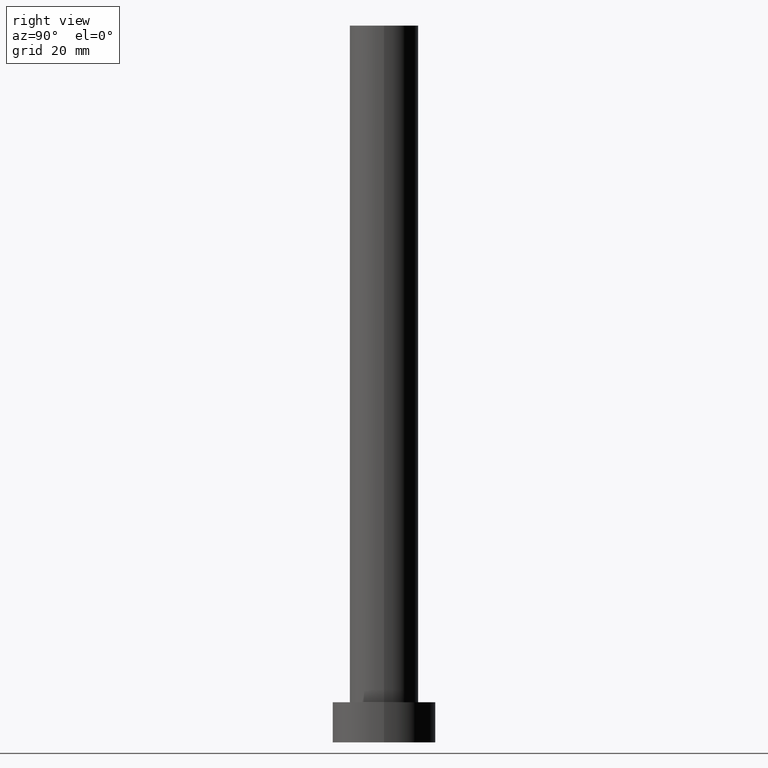
[diagram: clean part render]
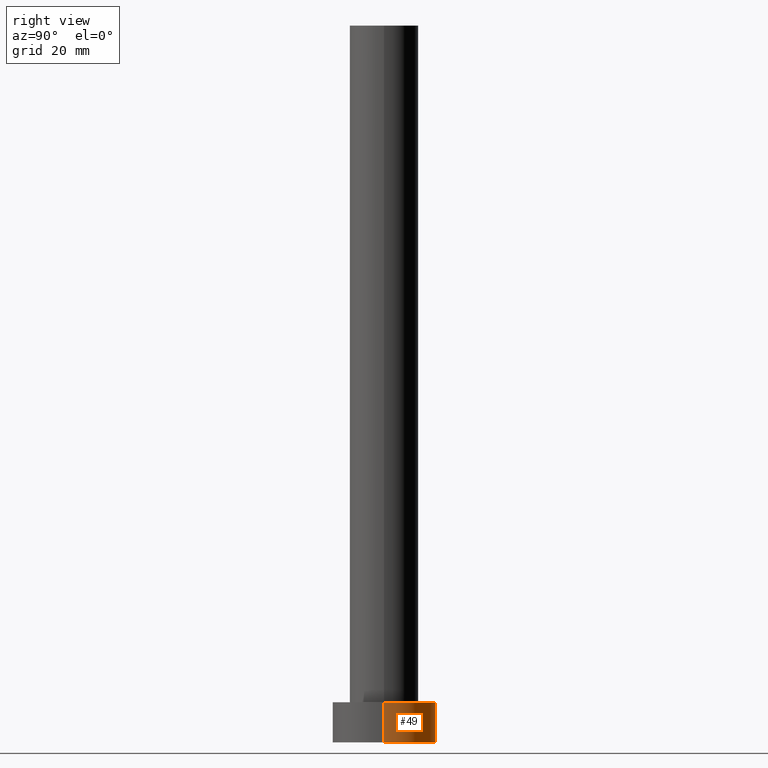
[diagram: same view with one face highlighted and labeled with its STEP entity id]
A machine part, right view. The second image highlights one B-rep face of the part: STEP entity #49.
In plain terms, the highlighted cylindrical surface (partial cylindrical patch) has radius 9 mm, axis along (-0, -0, -1).
Its self-contained STEP definition (entity closure, byte-faithful):
#4 = CARTESIAN_POINT ( 'NONE',  ( 9.000000000000000000, 1.102182119232617714E-15, 7.000000000000000000 ) ) ;
#5 = ORIENTED_EDGE ( 'NONE', *, *, #185, .F. ) ;
#6 = EDGE_CURVE ( 'NONE', #197, #238, #75, .T. ) ;
#12 = VERTEX_POINT ( 'NONE', #172 ) ;
#23 = CARTESIAN_POINT ( 'NONE',  ( 0.000000000000000000, 0.000000000000000000, 7.000000000000000000 ) ) ;
#31 = AXIS2_PLACEMENT_3D ( 'NONE', #61, #210, #123 ) ;
#32 = CARTESIAN_POINT ( 'NONE',  ( -9.000000000000000000, 0.000000000000000000, 0.000000000000000000 ) ) ;
#44 = DIRECTION ( 'NONE',  ( 0.000000000000000000, 0.000000000000000000, 1.000000000000000000 ) ) ;
#45 = LINE ( 'NONE', #64, #114 ) ;
#48 = ORIENTED_EDGE ( 'NONE', *, *, #175, .T. ) ;
#49 = ADVANCED_FACE ( 'NONE', ( #169 ), #211, .T. ) ;
#58 = DIRECTION ( 'NONE',  ( 1.000000000000000000, 0.000000000000000000, 0.000000000000000000 ) ) ;
#61 = CARTESIAN_POINT ( 'NONE',  ( 0.000000000000000000, 0.000000000000000000, 7.000000000000000000 ) ) ;
#64 = CARTESIAN_POINT ( 'NONE',  ( -9.000000000000000000, 0.000000000000000000, 7.000000000000000000 ) ) ;
#71 = DIRECTION ( 'NONE',  ( 0.000000000000000000, 0.000000000000000000, 1.000000000000000000 ) ) ;
#75 = CIRCLE ( 'NONE', #135, 9.000000000000000000 ) ;
#94 = DIRECTION ( 'NONE',  ( 1.000000000000000000, 0.000000000000000000, 0.000000000000000000 ) ) ;
#97 = AXIS2_PLACEMENT_3D ( 'NONE', #23, #44, #94 ) ;
#114 = VECTOR ( 'NONE', #244, 1000.000000000000000 ) ;
#120 = ORIENTED_EDGE ( 'NONE', *, *, #6, .T. ) ;
#123 = DIRECTION ( 'NONE',  ( -1.000000000000000000, 0.000000000000000000, 0.000000000000000000 ) ) ;
#131 = CIRCLE ( 'NONE', #97, 9.000000000000000000 ) ;
#133 = ORIENTED_EDGE ( 'NONE', *, *, #195, .F. ) ;
#135 = AXIS2_PLACEMENT_3D ( 'NONE', #194, #71, #58 ) ;
#140 = VECTOR ( 'NONE', #160, 1000.000000000000000 ) ;
#160 = DIRECTION ( 'NONE',  ( -0.000000000000000000, -0.000000000000000000, -1.000000000000000000 ) ) ;
#169 = FACE_OUTER_BOUND ( 'NONE', #199, .T. ) ;
#172 = CARTESIAN_POINT ( 'NONE',  ( -9.000000000000000000, 0.000000000000000000, 7.000000000000000000 ) ) ;
#175 = EDGE_CURVE ( 'NONE', #218, #197, #204, .T. ) ;
#185 = EDGE_CURVE ( 'NONE', #218, #12, #131, .T. ) ;
#194 = CARTESIAN_POINT ( 'NONE',  ( 0.000000000000000000, 0.000000000000000000, 0.000000000000000000 ) ) ;
#195 = EDGE_CURVE ( 'NONE', #12, #238, #45, .T. ) ;
#197 = VERTEX_POINT ( 'NONE', #207 ) ;
#199 = EDGE_LOOP ( 'NONE', ( #5, #48, #120, #133 ) ) ;
#204 = LINE ( 'NONE', #4, #140 ) ;
#207 = CARTESIAN_POINT ( 'NONE',  ( 9.000000000000000000, 1.102182119232617714E-15, 0.000000000000000000 ) ) ;
#210 = DIRECTION ( 'NONE',  ( -0.000000000000000000, -0.000000000000000000, -1.000000000000000000 ) ) ;
#211 = CYLINDRICAL_SURFACE ( 'NONE', #31, 9.000000000000000000 ) ;
#218 = VERTEX_POINT ( 'NONE', #230 ) ;
#230 = CARTESIAN_POINT ( 'NONE',  ( 9.000000000000000000, 1.102182119232617714E-15, 7.000000000000000000 ) ) ;
#238 = VERTEX_POINT ( 'NONE', #32 ) ;
#244 = DIRECTION ( 'NONE',  ( -0.000000000000000000, -0.000000000000000000, -1.000000000000000000 ) ) ;